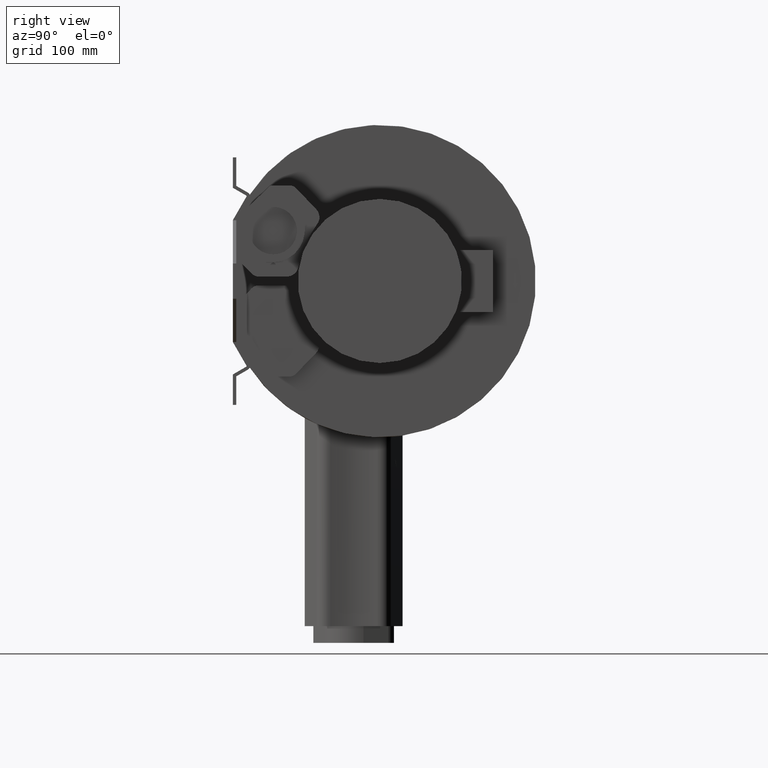
[diagram: clean part render]
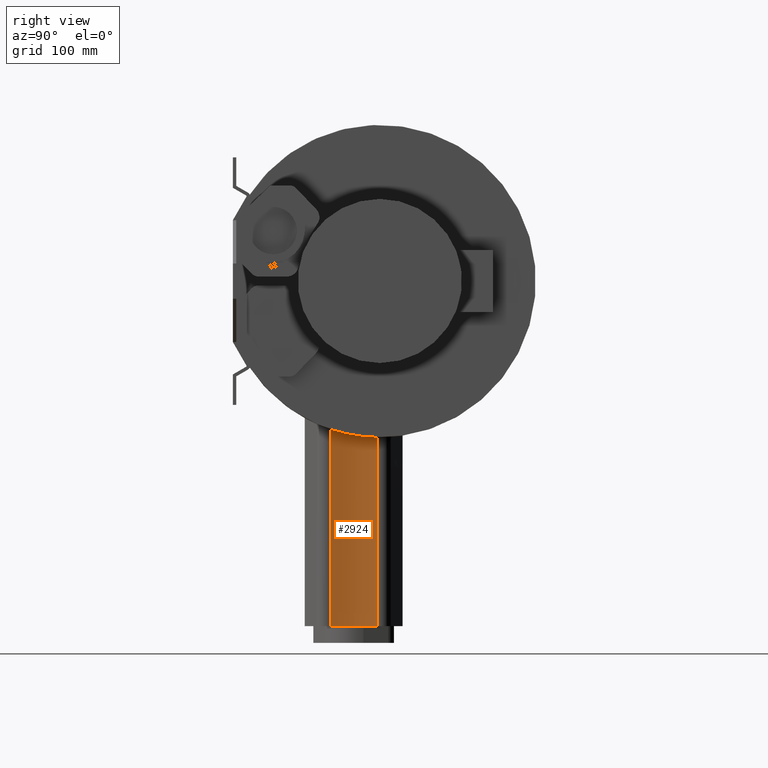
[diagram: same view with one face highlighted and labeled with its STEP entity id]
A machine part, right view. The second image highlights one B-rep face of the part: STEP entity #2924.
In plain terms, the highlighted cylindrical surface (partial cylindrical patch) has radius 113.5 mm, axis along (0, 0, -1).
Its self-contained STEP definition (entity closure, byte-faithful):
#1662=CARTESIAN_POINT('',(99.970335128895087,-58.851801527950364,-176.44394423418092));
#1663=VERTEX_POINT('',#1662);
#1677=CARTESIAN_POINT('',(99.970335128895087,-3.148198472049644,-185.97335520547179));
#1678=VERTEX_POINT('',#1677);
#1679=CARTESIAN_POINT('',(99.970335128895044,-58.851801527950371,-176.44394423418089));
#1680=CARTESIAN_POINT('',(99.544169660755117,-57.168217663832344,-177.00549336445442));
#1681=CARTESIAN_POINT('',(99.156194008813912,-55.472966353683724,-177.54413095891829));
#1682=CARTESIAN_POINT('',(97.269910253928941,-46.261254320520479,-180.32582112667734));
#1683=CARTESIAN_POINT('',(96.499999999999986,-38.578468195711793,-182.117478348102));
#1684=CARTESIAN_POINT('',(96.499999999999986,-23.963550149908997,-184.58785038188577));
#1685=CARTESIAN_POINT('',(97.165882384235474,-16.658659567699733,-185.39577165833609));
#1686=CARTESIAN_POINT('',(98.981944795326555,-7.298980491519461,-185.8684203574345));
#1687=CARTESIAN_POINT('',(99.446095662802648,-5.21922761924746,-185.93829636174883));
#1688=CARTESIAN_POINT('',(99.970335128895044,-3.148198472049635,-185.97335520547176));
#1689=B_SPLINE_CURVE_WITH_KNOTS('',3,(#1679,#1680,#1681,#1682,#1683,#1684,#1685,#1686,#1687,#1688),.UNSPECIFIED.,.F.,.U.,(4,2,2,2,4),(51.551268016835415,52.074610008270398,54.380400878645403,56.521279669081167,57.133654325054486),.UNSPECIFIED.);
#1690=EDGE_CURVE('',#1663,#1678,#1689,.T.);
#2881=CARTESIAN_POINT('',(99.970335128895087,-3.148198472049644,-411.0));
#2882=VERTEX_POINT('',#2881);
#2883=CARTESIAN_POINT('',(99.970335128895087,-3.148198472049644,-185.97335520547179));
#2884=DIRECTION('',(0.0,0.0,-1.0));
#2885=VECTOR('',#2884,225.02664479452821);
#2886=LINE('',#2883,#2885);
#2887=EDGE_CURVE('',#1678,#2882,#2886,.T.);
#2900=CARTESIAN_POINT('',(210.0,-31.0,0.0));
#2901=DIRECTION('',(0.0,0.0,-1.0));
#2902=DIRECTION('',(0.969424360097841,-0.245390321832162,0.0));
#2903=AXIS2_PLACEMENT_3D('',#2900,#2901,#2902);
#2904=CYLINDRICAL_SURFACE('',#2903,113.50000000000003);
#2905=ORIENTED_EDGE('',*,*,#1690,.F.);
#2906=CARTESIAN_POINT('',(99.970335128895087,-58.851801527950364,-411.0));
#2907=VERTEX_POINT('',#2906);
#2908=CARTESIAN_POINT('',(99.970335128895087,-58.851801527950364,-176.44394423418092));
#2909=DIRECTION('',(0.0,0.0,-1.0));
#2910=VECTOR('',#2909,234.55605576581908);
#2911=LINE('',#2908,#2910);
#2912=EDGE_CURVE('',#1663,#2907,#2911,.T.);
#2913=ORIENTED_EDGE('',*,*,#2912,.T.);
#2914=CARTESIAN_POINT('',(210.0,-31.0,-411.0));
#2915=DIRECTION('',(0.0,0.0,-1.0));
#2916=DIRECTION('',(0.969424360097841,-0.245390321832162,0.0));
#2917=AXIS2_PLACEMENT_3D('',#2914,#2915,#2916);
#2918=CIRCLE('',#2917,113.50000000000003);
#2919=EDGE_CURVE('',#2907,#2882,#2918,.T.);
#2920=ORIENTED_EDGE('',*,*,#2919,.T.);
#2921=ORIENTED_EDGE('',*,*,#2887,.F.);
#2922=EDGE_LOOP('',(#2905,#2913,#2920,#2921));
#2923=FACE_OUTER_BOUND('',#2922,.T.);
#2924=ADVANCED_FACE('',(#2923),#2904,.F.);